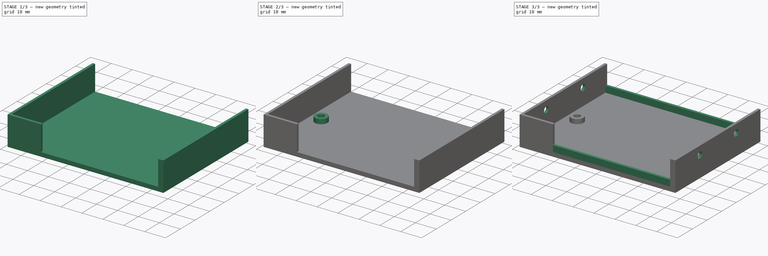
[diagram: build sequence overview — one tinted view per stage of 3, left to right]
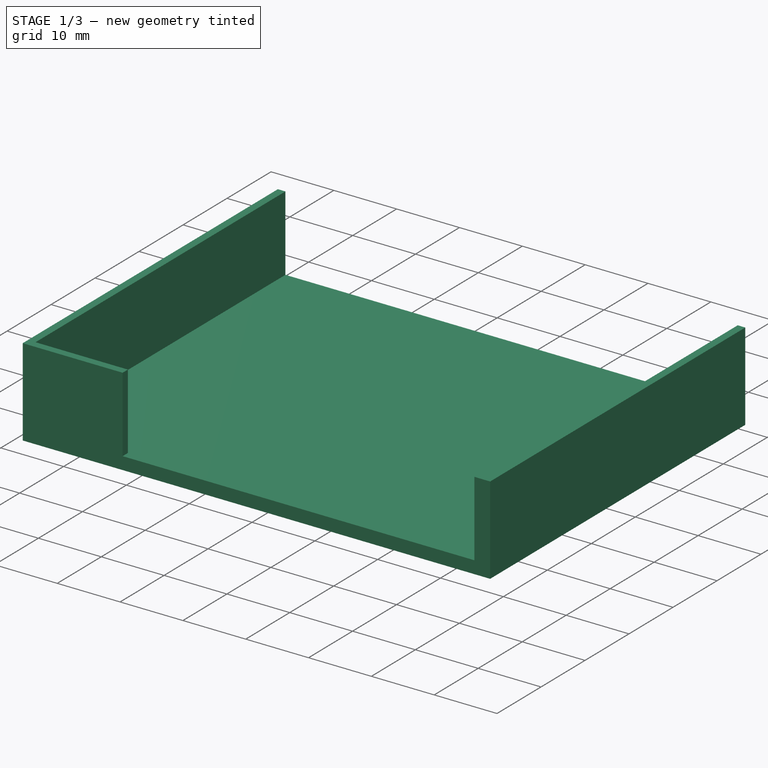
[diagram: stage 1 of 3 — iso view after this stage's code; geometry added in this stage tinted green]
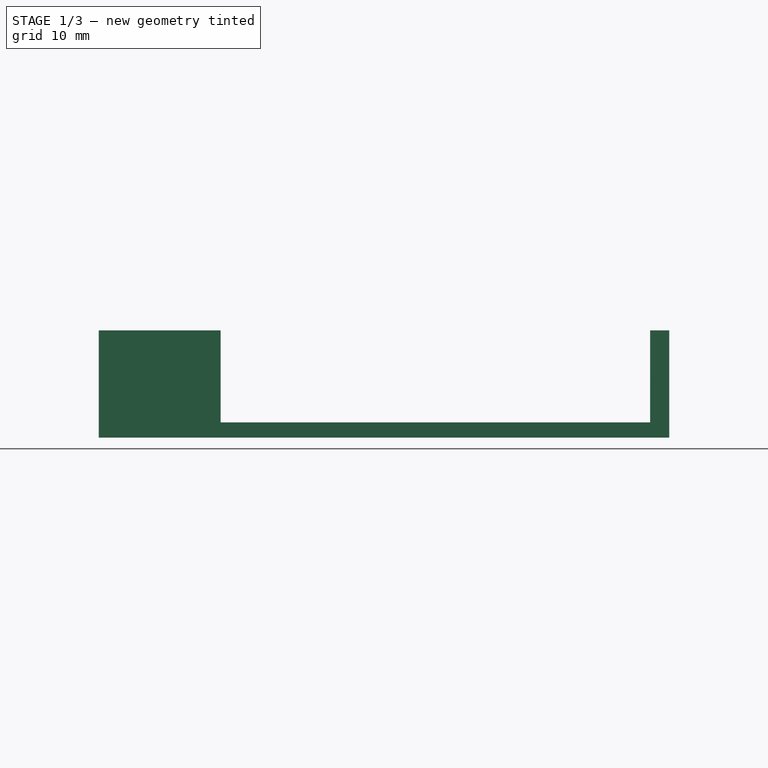
[diagram: stage 1 of 3 — front view after this stage's code; geometry added in this stage tinted green]
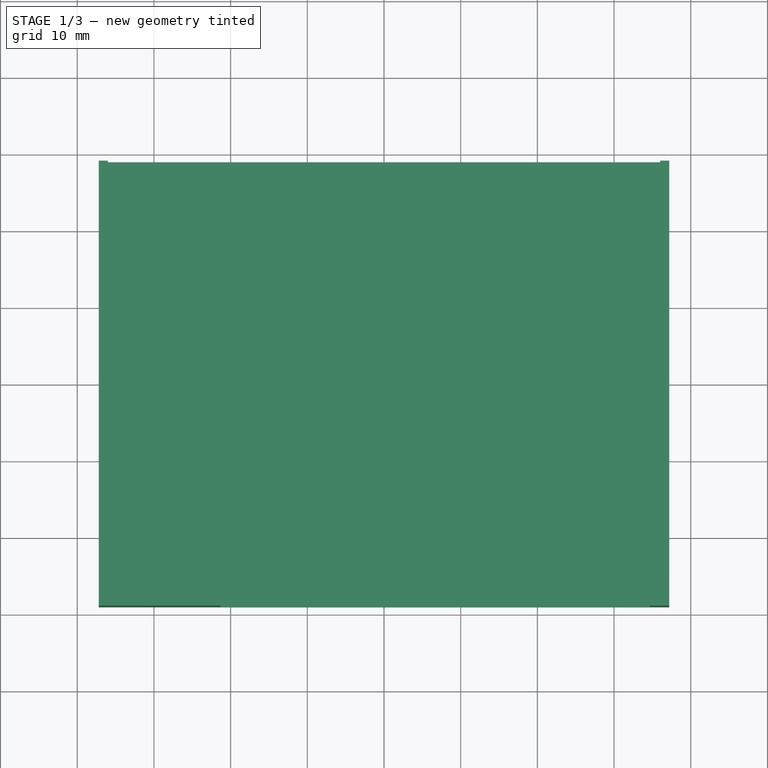
[diagram: stage 1 of 3 — top view after this stage's code; geometry added in this stage tinted green]
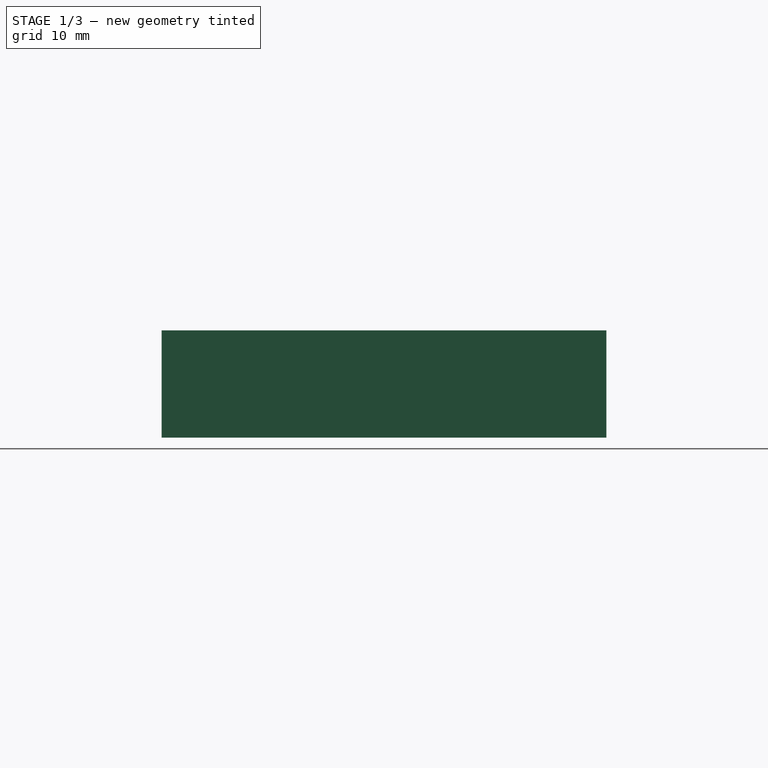
[diagram: stage 1 of 3 — right view after this stage's code; geometry added in this stage tinted green]
FCSTD DOCUMENT  (FreeCAD 0.19R)
Label: box
License: All rights reserved
LicenseURL: http://en.wikipedia.org/wiki/All_rights_reserved
objects: Sketcher::SketchObject×6, PartDesign::Pad×3, PartDesign::Pocket×3, PartDesign::Body×1
note: 19 computed .brp shape members not serialized (recipe doc carries the construction recipe); baked Part::Feature solids carry a one-line shape summary decoded from their .brp

FEATURE [Sketcher::SketchObject] Sketch
  FullyConstrained = true
  MapMode = 5
  Support = -> [XY_Plane]
  sketch-geometry (4):
    g0: LineSegment StartX=-37.2 StartY=29 StartZ=0 EndX=37.2 EndY=29 EndZ=0
    g1: LineSegment StartX=37.2 StartY=29 StartZ=0 EndX=37.2 EndY=-29 EndZ=0
    g2: LineSegment StartX=37.2 StartY=-29 StartZ=0 EndX=-37.2 EndY=-29 EndZ=0
    g3: LineSegment StartX=-37.2 StartY=-29 StartZ=0 EndX=-37.2 EndY=29 EndZ=0
  constraints (10):
    c: Coincident(g0,g1)
    c: Coincident(g1,g2)
    c: Coincident(g2,g3)
    c: Coincident(g3,g0)
    c: Horizontal(g2)
    c: Vertical(g3)
    c: Symmetric(g0,g0,g-2)
    c: Symmetric(g0,g1,g-1)
    c: DistanceX(g0,g0) = 74.4
    c: DistanceY(g1,g1) = 58
FEATURE [PartDesign::Pad] Pad
  Direction = (1,1,1)
  Length = 14
  Length2 = 100
  Profile = -> Sketch
  Type = 0
FEATURE [Sketcher::SketchObject] Sketch001
  FullyConstrained = false
  MapMode = 5
  Placement = pos=(0,0,14) rot=(0,0,1;0rad)
  Support = -> [Pad]
  sketch-geometry (8):
    g0: LineSegment StartX=36 StartY=30.5771 StartZ=0 EndX=36 EndY=-27.8 EndZ=0
    g1: LineSegment StartX=36 StartY=-27.8 StartZ=0 EndX=34.7 EndY=-27.8 EndZ=0
    g2: LineSegment StartX=34.7 StartY=-27.8 StartZ=0 EndX=34.7 EndY=-30.3552 EndZ=0
    g3: LineSegment StartX=34.7 StartY=-30.3552 StartZ=0 EndX=-21.3 EndY=-30.3552 EndZ=0
    g4: LineSegment StartX=-21.3 StartY=-30.3552 StartZ=0 EndX=-21.3 EndY=-27.8 EndZ=0
    g5: LineSegment StartX=-21.3 StartY=-27.8 StartZ=0 EndX=-36 EndY=-27.8 EndZ=0
    g6: LineSegment StartX=-36 StartY=-27.8 StartZ=0 EndX=-36 EndY=30.5771 EndZ=0
    g7: LineSegment StartX=-36 StartY=30.5771 StartZ=0 EndX=36 EndY=30.5771 EndZ=0
  constraints (21):
    c: Vertical(g0)
    c: Coincident(g1,g0)
    c: Horizontal(g1)
    c: Coincident(g2,g1)
    c: Vertical(g2)
    c: Coincident(g3,g2)
    c: Horizontal(g3)
    c: Coincident(g4,g3)
    c: Vertical(g4)
    c: Coincident(g5,g4)
    c: Horizontal(g5)
    c: Coincident(g6,g5)
    c: Vertical(g6)
    c: Coincident(g7,g6)
    c: Coincident(g7,g0)
    c: DistanceX(g7,g7) = 72
    c: Symmetric(g0,g6,g-2)
    c: DistanceX(g1,g1) = 1.3
    c: DistanceX(g3,g3) = 56
    c: Horizontal(g1,g4)
    c: DistanceY(g4,g-1) = 27.8
FEATURE [PartDesign::Pocket] Pocket
  BaseFeature = -> Pad
  Length = 12
  Length2 = 100
  Profile = -> Sketch001
  Type = 0
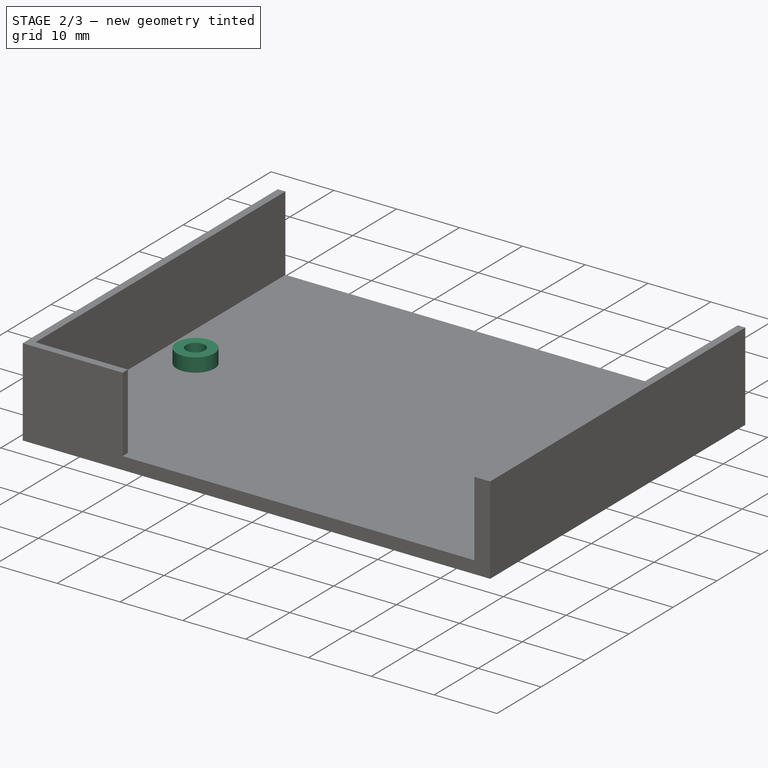
[diagram: stage 2 of 3 — iso view after this stage's code; geometry added in this stage tinted green]
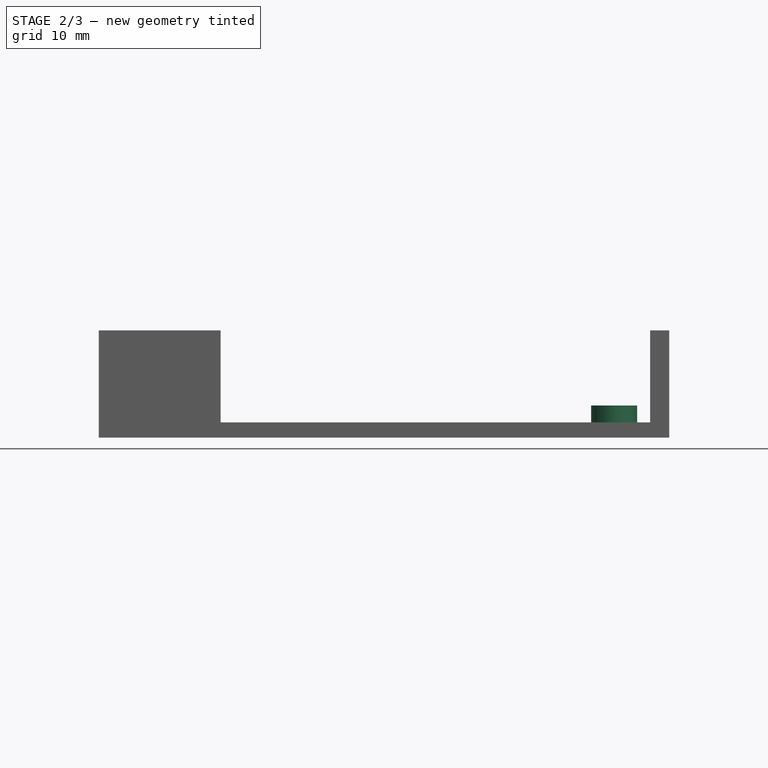
[diagram: stage 2 of 3 — front view after this stage's code; geometry added in this stage tinted green]
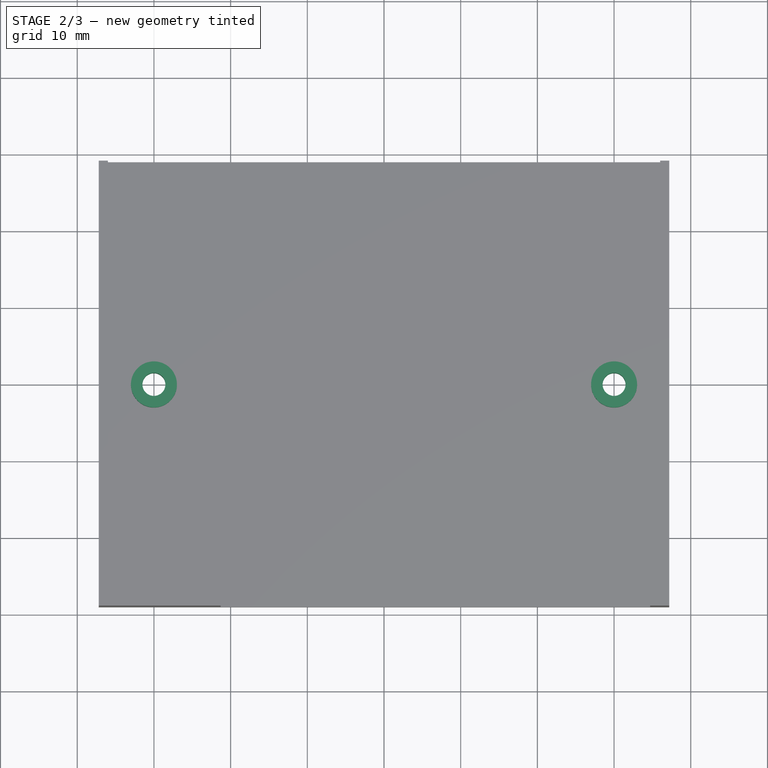
[diagram: stage 2 of 3 — top view after this stage's code; geometry added in this stage tinted green]
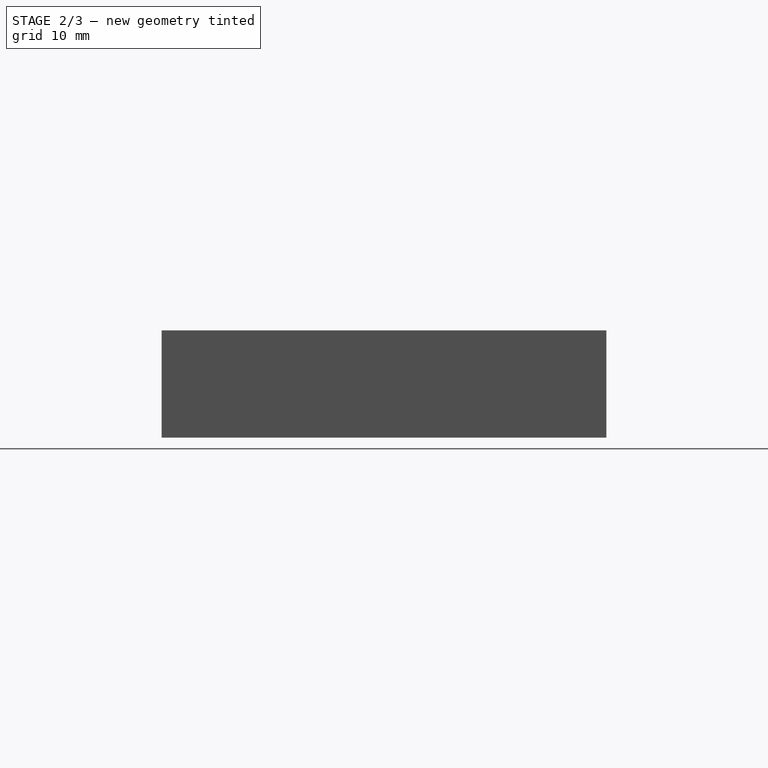
[diagram: stage 2 of 3 — right view after this stage's code; geometry added in this stage tinted green]
FEATURE [Sketcher::SketchObject] Sketch002
  FullyConstrained = true
  MapMode = 5
  Placement = pos=(0,0,2) rot=(0,0,1;0rad)
  Support = -> [Pocket]
  sketch-geometry (2):
    g0: Circle CenterX=30 CenterY=0 CenterZ=0 NormalX=0 NormalY=0 NormalZ=1 AngleXU=0 Radius=3
    g1: Circle CenterX=-30 CenterY=0 CenterZ=0 NormalX=0 NormalY=0 NormalZ=1 AngleXU=0 Radius=3
  constraints (5):
    c: PointOnObject(g0,g-1)
    c: Radius(g0) = 3
    c: Equal(g0,g1)
    c: Symmetric(g1,g0,g-2)
    c: DistanceX(g1,g0) = 60
FEATURE [PartDesign::Pad] Pad001
  BaseFeature = -> Pocket
  Direction = (1,1,1)
  Length = 2.2
  Length2 = 100
  Profile = -> Sketch002
  Type = 0
FEATURE [Sketcher::SketchObject] Sketch003
  FullyConstrained = true
  MapMode = 5
  Placement = pos=(0,0,4.2) rot=(0,0,1;0rad)
  Support = -> [Pad001]
  sketch-geometry (2):
    g0: Circle CenterX=30 CenterY=0 CenterZ=0 NormalX=0 NormalY=0 NormalZ=1 AngleXU=0 Radius=1.5
    g1: Circle CenterX=-30 CenterY=0 CenterZ=0 NormalX=0 NormalY=0 NormalZ=1 AngleXU=0 Radius=1.5
  constraints (5):
    c: PointOnObject(g0,g-1)
    c: Radius(g1) = 1.5
    c: Equal(g1,g0)
    c: Symmetric(g0,g1,g-2)
    c: DistanceX(g1,g0) = 60
FEATURE [PartDesign::Pocket] Pocket001
  BaseFeature = -> Pad001
  Length = 5
  Length2 = 100
  Profile = -> Sketch003
  Type = 1
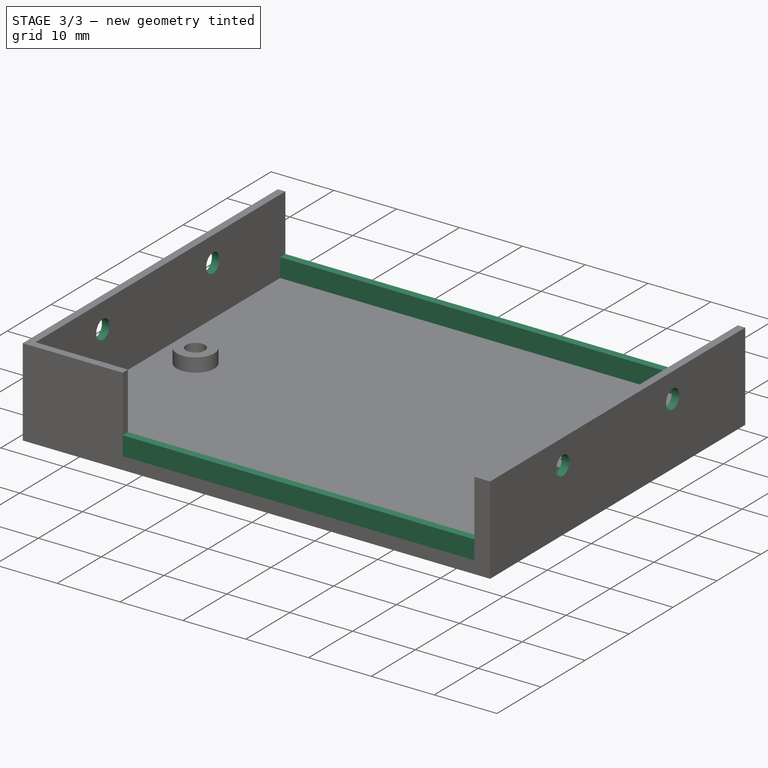
[diagram: stage 3 of 3 — iso view after this stage's code; geometry added in this stage tinted green]
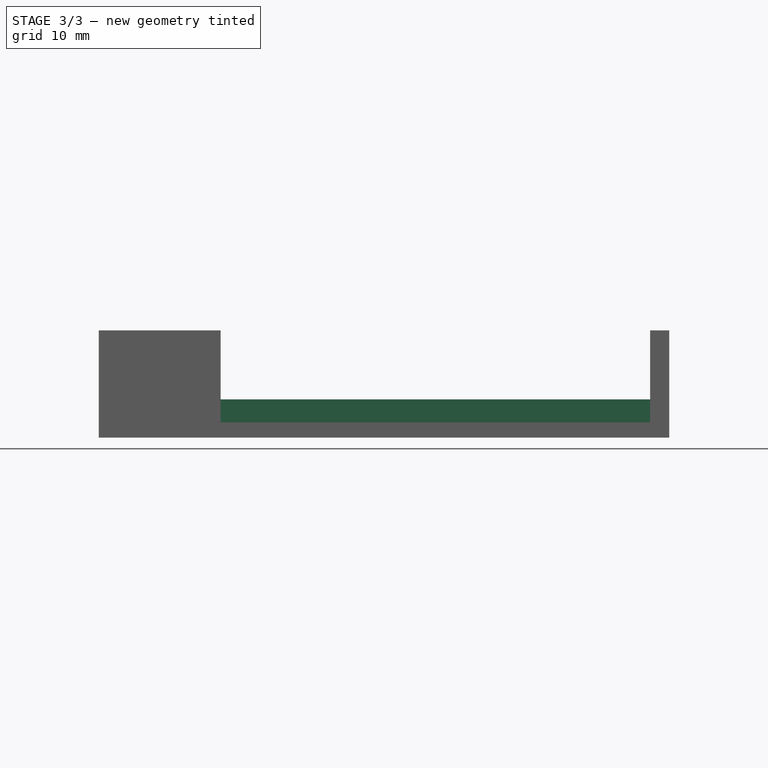
[diagram: stage 3 of 3 — front view after this stage's code; geometry added in this stage tinted green]
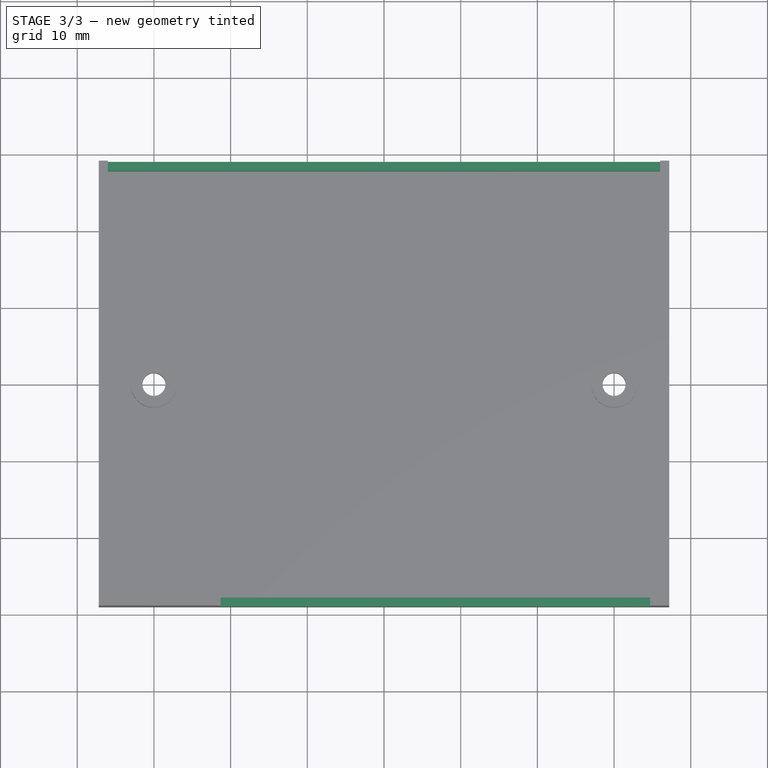
[diagram: stage 3 of 3 — top view after this stage's code; geometry added in this stage tinted green]
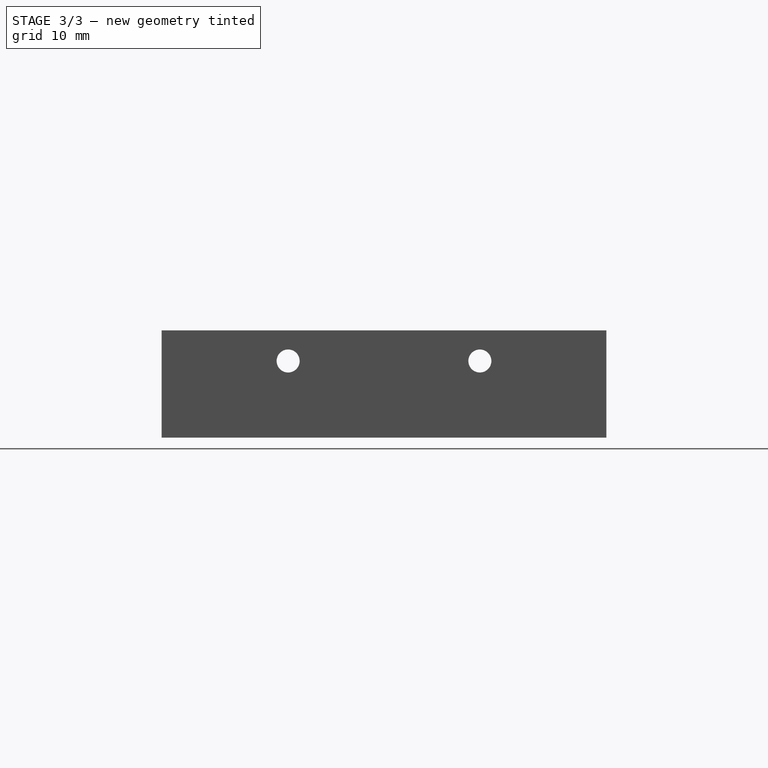
[diagram: stage 3 of 3 — right view after this stage's code; geometry added in this stage tinted green]
FEATURE [Sketcher::SketchObject] Sketch004
  FullyConstrained = true
  MapMode = 5
  Placement = pos=(-37.2,0,0) rot=(0.57735,-0.57735,-0.57735;2.0944rad)
  Support = -> [Pocket001]
  sketch-geometry (2):
    g0: Circle CenterX=-12.5 CenterY=10 CenterZ=0 NormalX=0 NormalY=0 NormalZ=1 AngleXU=0 Radius=1.5
    g1: Circle CenterX=12.5 CenterY=10 CenterZ=0 NormalX=0 NormalY=0 NormalZ=1 AngleXU=0 Radius=1.5
  constraints (5):
    c: Symmetric(g1,g0,g-2)
    c: DistanceX(g0,g1) = 25
    c: Radius(g1) = 1.5
    c: Equal(g1,g0)
    c: DistanceY(g-1,g0) = 10
FEATURE [PartDesign::Pocket] Pocket002
  BaseFeature = -> Pocket001
  Length = 5
  Length2 = 100
  Profile = -> Sketch004
  Type = 1
FEATURE [Sketcher::SketchObject] Sketch005
  FullyConstrained = false
  MapMode = 5
  Placement = pos=(0,0,2) rot=(0,0,1;0rad)
  Support = -> [Pocket002]
  sketch-geometry (8):
    g0: LineSegment StartX=-37.2 StartY=29 StartZ=0 EndX=37.2 EndY=29 EndZ=0
    g1: LineSegment StartX=37.2 StartY=29 StartZ=0 EndX=37.2 EndY=27.8 EndZ=0
    g2: LineSegment StartX=37.2 StartY=27.8 StartZ=0 EndX=-37.2 EndY=27.8 EndZ=0
    g3: LineSegment StartX=-37.2 StartY=27.8 StartZ=0 EndX=-37.2 EndY=29 EndZ=0
    g4: LineSegment StartX=-22.4766 StartY=-27.8 StartZ=0 EndX=37.2 EndY=-27.8 EndZ=0
    g5: LineSegment StartX=37.2 StartY=-27.8 StartZ=0 EndX=37.2 EndY=-29 EndZ=0
    g6: LineSegment StartX=37.2 StartY=-29 StartZ=0 EndX=-22.4766 EndY=-29 EndZ=0
    g7: LineSegment StartX=-22.4766 StartY=-29 StartZ=0 EndX=-22.4766 EndY=-27.8 EndZ=0
  constraints (21):
    c: Coincident(g0,g1)
    c: Coincident(g1,g2)
    c: Coincident(g2,g3)
    c: Coincident(g3,g0)
    c: Horizontal(g2)
    c: Vertical(g1)
    c: Vertical(g3)
    c: Coincident(g4,g5)
    c: Coincident(g5,g6)
    c: Coincident(g6,g7)
    c: Coincident(g7,g4)
    c: Horizontal(g4)
    c: Horizontal(g6)
    c: Vertical(g5)
    c: Vertical(g7)
    c: DistanceY(g5,g0) = 58
    c: Symmetric(g0,g5,g-1)
    c: DistanceY(g3,g3) = 1.2
    c: DistanceY(g7,g7) = 1.2
    c: Symmetric(g0,g0,g-2)
    c: DistanceX(g0,g0) = 74.4
FEATURE [PartDesign::Pad] Pad002
  BaseFeature = -> Pocket002
  Direction = (1,1,1)
  Length = 3
  Length2 = 100
  Profile = -> Sketch005
  Type = 0
FEATURE [PartDesign::Body] Body
  Group = -> [Sketch,Pad,Sketch001,Pocket,Sketch002,Pad001,Sketch003,Pocket001,Sketch004,Pocket002,Sketch005,Pad002]
  Origin = -> Origin
  Tip = -> Pad002
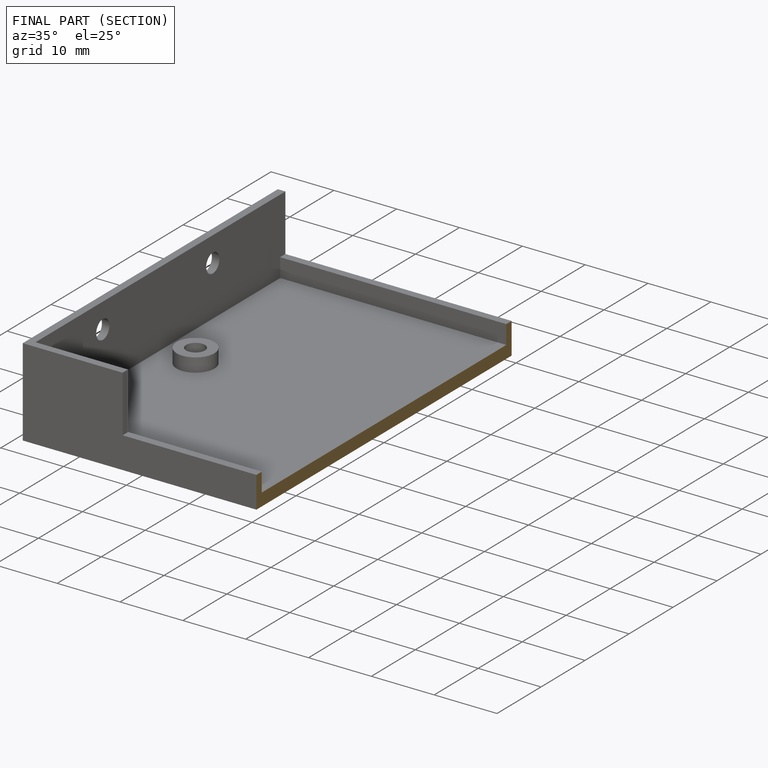
[diagram: finished part — half-section view (interior)]
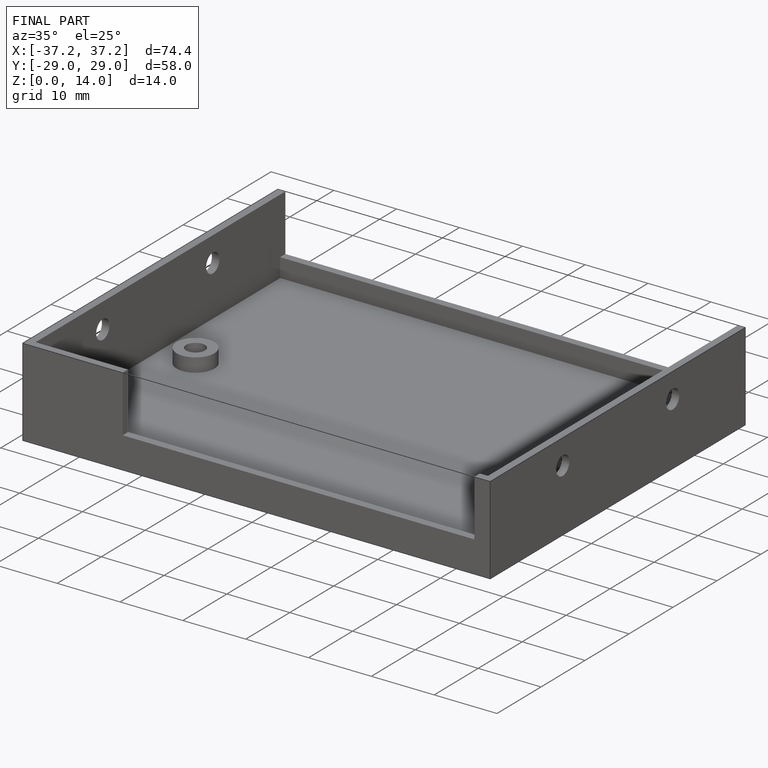
[diagram: finished part — iso view with bounding-box wireframe]
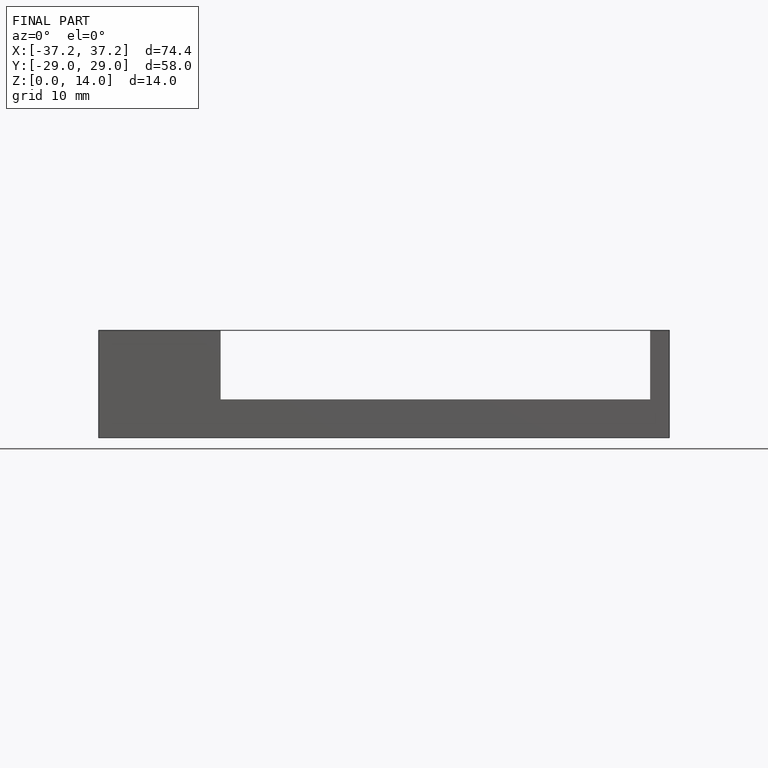
[diagram: finished part — front view with bounding-box wireframe]
